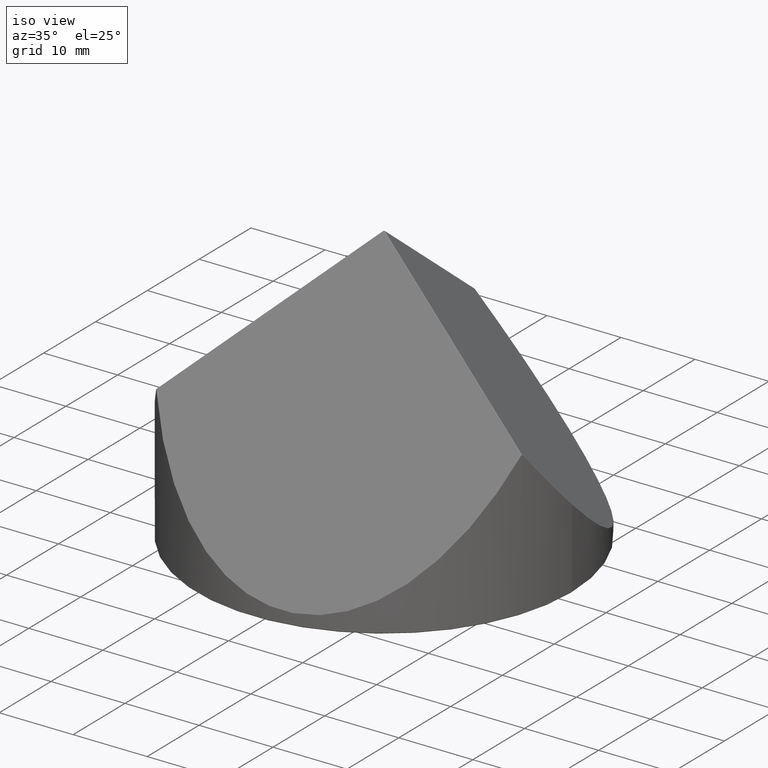
[diagram: clean part render]
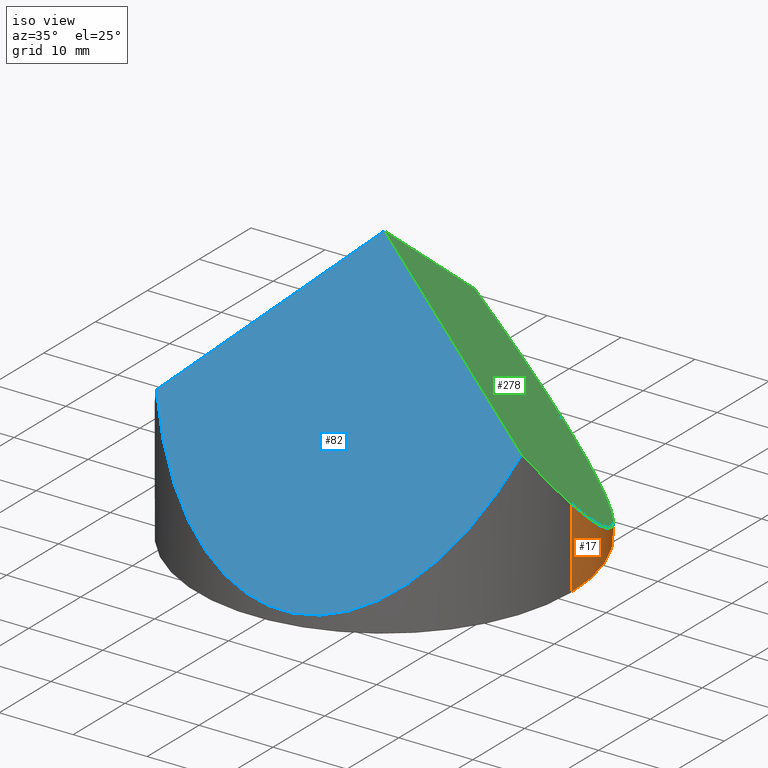
[diagram: same view with three faces highlighted in distinct colors, each labeled with its STEP entity id]
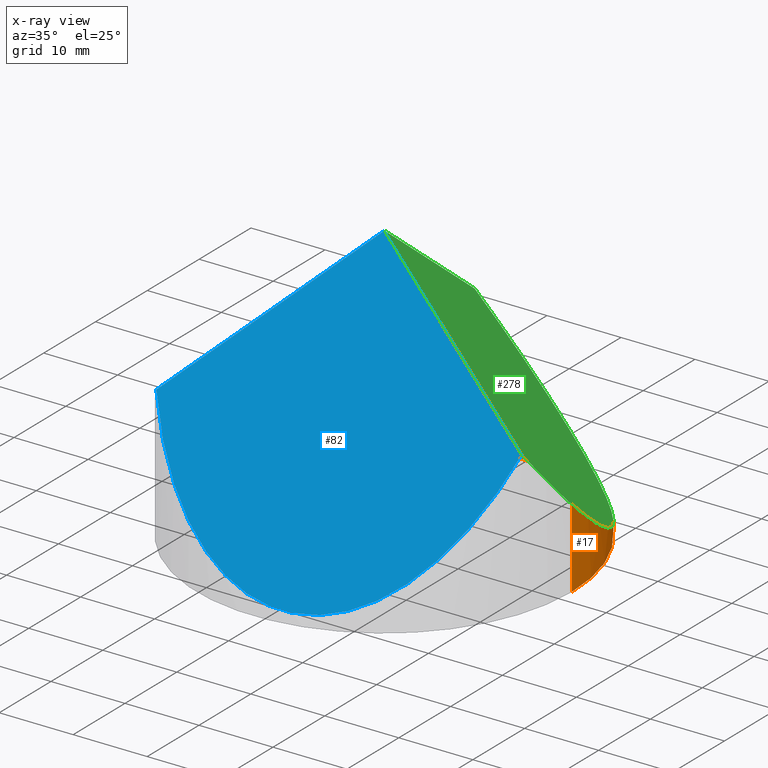
[diagram: x-ray of the same camera — body ghosted, the three highlighted faces saturated]
A machine part, iso view with three faces highlighted in distinct colors.
The next image is the same camera in x-ray (body ghosted, the three faces saturated) — at least one of them is partly hidden behind the body in this view.
Their STEP definitions:

[orange] entity #17 — the highlighted cylindrical surface (partial cylindrical patch) has radius 25.4 mm, axis along (-0, -0, -1).
#14 = CIRCLE ( 'NONE', #118, 25.39999999999999858 ) ;
#15 = VERTEX_POINT ( 'NONE', #128 ) ;
#17 = ADVANCED_FACE ( 'NONE', ( #232 ), #92, .T. ) ;
#25 = CARTESIAN_POINT ( 'NONE',  ( -5.168128125611016088, 24.86866405091493348, 18.91346705688051344 ) ) ;
#34 =( BOUNDED_CURVE ( )  B_SPLINE_CURVE ( 3, ( #290, #150, #262, #139 ),
 .UNSPECIFIED., .F., .F. ) 
 B_SPLINE_CURVE_WITH_KNOTS ( ( 4, 4 ),
 ( 5.551902276905597233, 7.327598969815007912 ),
 .UNSPECIFIED. ) 
 CURVE ( )  GEOMETRIC_REPRESENTATION_ITEM ( )  RATIONAL_B_SPLINE_CURVE ( ( 1.000000000000000000, 0.7540550383317463634, 0.7540550383317463634, 1.000000000000000000 ) ) 
 REPRESENTATION_ITEM ( '' )  );
#46 = CARTESIAN_POINT ( 'NONE',  ( 0.000000000000000000, 0.000000000000000000, -0.4400000000000237055 ) ) ;
#49 = EDGE_CURVE ( 'NONE', #286, #123, #287, .T. ) ;
#55 = VECTOR ( 'NONE', #336, 1000.000000000000000 ) ;
#57 = EDGE_CURVE ( 'NONE', #15, #155, #14, .T. ) ;
#64 = ORIENTED_EDGE ( 'NONE', *, *, #100, .T. ) ;
#70 = DIRECTION ( 'NONE',  ( -1.000000000000000000, 0.000000000000000000, 0.000000000000000000 ) ) ;
#78 = DIRECTION ( 'NONE',  ( 0.000000000000000000, 0.000000000000000000, 1.000000000000000000 ) ) ;
#92 = CYLINDRICAL_SURFACE ( 'NONE', #193, 25.39999999999999858 ) ;
#99 = VERTEX_POINT ( 'NONE', #137 ) ;
#100 = EDGE_CURVE ( 'NONE', #286, #99, #125, .T. ) ;
#102 = CARTESIAN_POINT ( 'NONE',  ( -5.306510482835705034, 24.83950374897926494, 18.91346705688070173 ) ) ;
#109 = CARTESIAN_POINT ( 'NONE',  ( -5.214282578149510350, 24.85907237667790426, 18.91337426047530101 ) ) ;
#118 = AXIS2_PLACEMENT_3D ( 'NONE', #46, #78, #189 ) ;
#123 = VERTEX_POINT ( 'NONE', #328 ) ;
#125 =( BOUNDED_CURVE ( )  B_SPLINE_CURVE ( 3, ( #361, #215, #109, #25 ),
 .UNSPECIFIED., .F., .T. ) 
 B_SPLINE_CURVE_WITH_KNOTS ( ( 4, 4 ),
 ( 6.280401418618402509, 6.285969195740753079 ),
 .UNSPECIFIED. ) 
 CURVE ( )  GEOMETRIC_REPRESENTATION_ITEM ( )  RATIONAL_B_SPLINE_CURVE ( ( 1.000000000000000000, 0.9999974166564946643, 0.9999974166564946643, 1.000000000000000000 ) ) 
 REPRESENTATION_ITEM ( '' )  );
#128 = CARTESIAN_POINT ( 'NONE',  ( 25.39999999999999858, 3.110602869834276865E-15, -0.4400000000000237055 ) ) ;
#130 = CARTESIAN_POINT ( 'NONE',  ( 25.39999999999999858, 3.110602869834276865E-15, 10.22384084278788308 ) ) ;
#137 = CARTESIAN_POINT ( 'NONE',  ( -5.168128125611016088, 24.86866405091493348, 18.91346705688051344 ) ) ;
#139 = CARTESIAN_POINT ( 'NONE',  ( -5.168128125611016088, 24.86866405091493348, 18.91346705688051344 ) ) ;
#150 = CARTESIAN_POINT ( 'NONE',  ( 25.39999999999999858, 17.41975240290805260, -6.228199174431550134 ) ) ;
#155 = VERTEX_POINT ( 'NONE', #331 ) ;
#164 = CARTESIAN_POINT ( 'NONE',  ( -25.39999999999999858, 0.000000000000000000, 2.817124151136544796 ) ) ;
#169 = EDGE_CURVE ( 'NONE', #355, #15, #245, .T. ) ;
#182 = ORIENTED_EDGE ( 'NONE', *, *, #241, .F. ) ;
#183 = EDGE_LOOP ( 'NONE', ( #345, #264, #289, #182, #323, #64 ) ) ;
#189 = DIRECTION ( 'NONE',  ( -1.000000000000000000, 0.000000000000000000, 0.000000000000000000 ) ) ;
#193 = AXIS2_PLACEMENT_3D ( 'NONE', #204, #322, #70 ) ;
#194 = CARTESIAN_POINT ( 'NONE',  ( 25.39999999999999858, 3.110602869834276865E-15, 19.00000000000000000 ) ) ;
#204 = CARTESIAN_POINT ( 'NONE',  ( 0.000000000000000000, 0.000000000000000000, 19.00000000000000000 ) ) ;
#215 = CARTESIAN_POINT ( 'NONE',  ( -5.260410149721108652, 24.84935225092225508, 18.91337426047529746 ) ) ;
#232 = FACE_OUTER_BOUND ( 'NONE', #183, .T. ) ;
#241 = EDGE_CURVE ( 'NONE', #123, #155, #277, .T. ) ;
#245 = LINE ( 'NONE', #194, #55 ) ;
#247 = CARTESIAN_POINT ( 'NONE',  ( -25.39999999999999858, 0.000000000000000000, 19.00000000000000000 ) ) ;
#262 = CARTESIAN_POINT ( 'NONE',  ( 11.88722503809127495, 28.41305430031056645, -2.386911835814395477 ) ) ;
#264 = ORIENTED_EDGE ( 'NONE', *, *, #169, .T. ) ;
#265 = VECTOR ( 'NONE', #364, 1000.000000000000000 ) ;
#277 = LINE ( 'NONE', #247, #265 ) ;
#286 = VERTEX_POINT ( 'NONE', #292 ) ;
#287 =( BOUNDED_CURVE ( )  B_SPLINE_CURVE ( 3, ( #102, #360, #300, #164 ),
 .UNSPECIFIED., .F., .T. ) 
 B_SPLINE_CURVE_WITH_KNOTS ( ( 4, 4 ),
 ( 5.238771644544158335, 6.599099828102190202 ),
 .UNSPECIFIED. ) 
 CURVE ( )  GEOMETRIC_REPRESENTATION_ITEM ( )  RATIONAL_B_SPLINE_CURVE ( ( 1.000000000000000000, 0.8516463523446279327, 0.8516463523446279327, 1.000000000000000000 ) ) 
 REPRESENTATION_ITEM ( '' )  );
#289 = ORIENTED_EDGE ( 'NONE', *, *, #57, .T. ) ;
#290 = CARTESIAN_POINT ( 'NONE',  ( 25.39999999999999858, 3.110602869834276865E-15, 10.22384084278788308 ) ) ;
#292 = CARTESIAN_POINT ( 'NONE',  ( -5.306510482835705034, 24.83950374897926494, 18.91346705688070173 ) ) ;
#300 = CARTESIAN_POINT ( 'NONE',  ( -25.39999999999999858, 12.50486458425474012, -2.677215275479166490 ) ) ;
#309 = EDGE_CURVE ( 'NONE', #355, #99, #34, .T. ) ;
#322 = DIRECTION ( 'NONE',  ( -0.000000000000000000, -0.000000000000000000, -1.000000000000000000 ) ) ;
#323 = ORIENTED_EDGE ( 'NONE', *, *, #49, .F. ) ;
#328 = CARTESIAN_POINT ( 'NONE',  ( -25.39999999999999858, 0.000000000000000000, 2.817124151136544796 ) ) ;
#331 = CARTESIAN_POINT ( 'NONE',  ( -25.39999999999999858, 0.000000000000000000, -0.4400000000000237055 ) ) ;
#336 = DIRECTION ( 'NONE',  ( -0.000000000000000000, -0.000000000000000000, -1.000000000000000000 ) ) ;
#345 = ORIENTED_EDGE ( 'NONE', *, *, #309, .F. ) ;
#355 = VERTEX_POINT ( 'NONE', #130 ) ;
#360 = CARTESIAN_POINT ( 'NONE',  ( -17.53543295216929820, 22.22701575674349783, 3.622873511934407986 ) ) ;
#361 = CARTESIAN_POINT ( 'NONE',  ( -5.306510482835705034, 24.83950374897926494, 18.91346705688070173 ) ) ;
#364 = DIRECTION ( 'NONE',  ( -0.000000000000000000, -0.000000000000000000, -1.000000000000000000 ) ) ;

[blue] entity #82 — the highlighted planar face has unit normal (0.1684, -0.799, 0.5774).
#26 = DIRECTION ( 'NONE',  ( 0.1683570817218961180, -0.7989509119468820586, 0.5773502691896249539 ) ) ;
#31 = LINE ( 'NONE', #340, #248 ) ;
#44 = ORIENTED_EDGE ( 'NONE', *, *, #311, .T. ) ;
#50 = VECTOR ( 'NONE', #87, 1000.000000000000114 ) ;
#62 = LINE ( 'NONE', #199, #50 ) ;
#82 = ADVANCED_FACE ( 'NONE', ( #359 ), #362, .T. ) ;
#86 = CARTESIAN_POINT ( 'NONE',  ( 0.01683570817220000904, -0.07989509119468762854, 36.84504218830038269 ) ) ;
#87 = DIRECTION ( 'NONE',  ( -0.7760903269836917362, 0.2536739462952649626, 0.5773502691896257311 ) ) ;
#94 = AXIS2_PLACEMENT_3D ( 'NONE', #219, #26, #330 ) ;
#95 =( BOUNDED_CURVE ( )  B_SPLINE_CURVE ( 3, ( #159, #274, #243, #240 ),
 .UNSPECIFIED., .F., .T. ) 
 B_SPLINE_CURVE_WITH_KNOTS ( ( 4, 4 ),
 ( 5.238771644544156558, 7.327598969815005248 ),
 .UNSPECIFIED. ) 
 CURVE ( )  GEOMETRIC_REPRESENTATION_ITEM ( )  RATIONAL_B_SPLINE_CURVE ( ( 1.000000000000000000, 0.6682726517290241697, 0.6682726517290241697, 1.000000000000000000 ) ) 
 REPRESENTATION_ITEM ( '' )  );
#107 = CARTESIAN_POINT ( 'NONE',  ( 24.12095888907871455, -7.958601778665308046, 18.91346705688044239 ) ) ;
#111 = EDGE_CURVE ( 'NONE', #263, #148, #95, .T. ) ;
#115 = CARTESIAN_POINT ( 'NONE',  ( -18.85838602259694241, -17.01532475807383804, 18.91346705688074437 ) ) ;
#148 = VERTEX_POINT ( 'NONE', #107 ) ;
#159 = CARTESIAN_POINT ( 'NONE',  ( -18.85838602259694241, -17.01532475807383804, 18.91346705688074437 ) ) ;
#179 = ORIENTED_EDGE ( 'NONE', *, *, #269, .T. ) ;
#199 = CARTESIAN_POINT ( 'NONE',  ( 16.50034365087477539, -5.467717053705210439, 24.58260646783990921 ) ) ;
#219 = CARTESIAN_POINT ( 'NONE',  ( 3.592598988921612779, -17.04894269431294873, 12.32017074737939843 ) ) ;
#233 = DIRECTION ( 'NONE',  ( -0.6077332452617962844, -0.5452769656516146535, -0.5773502691896257311 ) ) ;
#240 = CARTESIAN_POINT ( 'NONE',  ( 24.12095888907871455, -7.958601778665308046, 18.91346705688044239 ) ) ;
#243 = CARTESIAN_POINT ( 'NONE',  ( 17.25624912604057570, -28.76418881325986376, -7.876024622089468963 ) ) ;
#248 = VECTOR ( 'NONE', #233, 1000.000000000000000 ) ;
#256 = VERTEX_POINT ( 'NONE', #86 ) ;
#263 = VERTEX_POINT ( 'NONE', #115 ) ;
#269 = EDGE_CURVE ( 'NONE', #148, #256, #62, .T. ) ;
#274 = CARTESIAN_POINT ( 'NONE',  ( -4.181779598949180610, -33.28166779731227365, -7.876024622089304650 ) ) ;
#311 = EDGE_CURVE ( 'NONE', #256, #263, #31, .T. ) ;
#330 = DIRECTION ( 'NONE',  ( 0.000000000000000000, -0.5857106597838052098, -0.8105202175242882667 ) ) ;
#340 = CARTESIAN_POINT ( 'NONE',  ( -12.89090895378097024, -11.66112073180239683, 24.58260646783990566 ) ) ;
#342 = EDGE_LOOP ( 'NONE', ( #179, #44, #349 ) ) ;
#349 = ORIENTED_EDGE ( 'NONE', *, *, #111, .T. ) ;
#359 = FACE_OUTER_BOUND ( 'NONE', #342, .T. ) ;
#362 = PLANE ( 'NONE',  #94 ) ;

[green] entity #278 — the highlighted planar face has unit normal (0.6077, 0.5453, 0.5774).
#6 = EDGE_CURVE ( 'NONE', #99, #176, #202, .T. ) ;
#23 =( BOUNDED_CURVE ( )  B_SPLINE_CURVE ( 3, ( #138, #304, #52, #51 ),
 .UNSPECIFIED., .F., .T. ) 
 B_SPLINE_CURVE_WITH_KNOTS ( ( 4, 4 ),
 ( 5.238771644544163664, 5.551902276905597233 ),
 .UNSPECIFIED. ) 
 CURVE ( )  GEOMETRIC_REPRESENTATION_ITEM ( )  RATIONAL_B_SPLINE_CURVE ( ( 1.000000000000000000, 0.9918457778570393124, 0.9918457778570393124, 1.000000000000000000 ) ) 
 REPRESENTATION_ITEM ( '' )  );
#33 = DIRECTION ( 'NONE',  ( 0.6077332452617951741, 0.5452769656516149865, 0.5773502691896267303 ) ) ;
#34 =( BOUNDED_CURVE ( )  B_SPLINE_CURVE ( 3, ( #290, #150, #262, #139 ),
 .UNSPECIFIED., .F., .F. ) 
 B_SPLINE_CURVE_WITH_KNOTS ( ( 4, 4 ),
 ( 5.551902276905597233, 7.327598969815007912 ),
 .UNSPECIFIED. ) 
 CURVE ( )  GEOMETRIC_REPRESENTATION_ITEM ( )  RATIONAL_B_SPLINE_CURVE ( ( 1.000000000000000000, 0.7540550383317463634, 0.7540550383317463634, 1.000000000000000000 ) ) 
 REPRESENTATION_ITEM ( '' )  );
#40 = CARTESIAN_POINT ( 'NONE',  ( -3.514989956223204537, 17.02357529968344352, 24.58260646783990566 ) ) ;
#51 = CARTESIAN_POINT ( 'NONE',  ( 25.39999999999999858, 3.110602869834276865E-15, 10.22384084278788308 ) ) ;
#52 = CARTESIAN_POINT ( 'NONE',  ( 25.40000000000000924, -2.662061765035191208, 12.73801817858958607 ) ) ;
#54 = DIRECTION ( 'NONE',  ( 0.7760903269836917362, -0.2536739462952649626, -0.5773502691896257311 ) ) ;
#76 = CARTESIAN_POINT ( 'NONE',  ( 16.54428126722876868, -5.333294265945349721, 24.58260646783990566 ) ) ;
#99 = VERTEX_POINT ( 'NONE', #137 ) ;
#103 = LINE ( 'NONE', #76, #212 ) ;
#112 = VECTOR ( 'NONE', #260, 1000.000000000000000 ) ;
#120 = DIRECTION ( 'NONE',  ( 0.6887517733186873103, 0.000000000000000000, -0.7249972377536092472 ) ) ;
#122 = ORIENTED_EDGE ( 'NONE', *, *, #309, .T. ) ;
#127 = VERTEX_POINT ( 'NONE', #298 ) ;
#130 = CARTESIAN_POINT ( 'NONE',  ( 25.39999999999999858, 3.110602869834276865E-15, 10.22384084278788308 ) ) ;
#137 = CARTESIAN_POINT ( 'NONE',  ( -5.168128125611016088, 24.86866405091493348, 18.91346705688051344 ) ) ;
#138 = CARTESIAN_POINT ( 'NONE',  ( 24.16489650543270074, -7.824178990905487296, 18.91346705688055252 ) ) ;
#139 = CARTESIAN_POINT ( 'NONE',  ( -5.168128125611016088, 24.86866405091493348, 18.91346705688051344 ) ) ;
#140 = EDGE_CURVE ( 'NONE', #176, #127, #103, .T. ) ;
#143 = FACE_OUTER_BOUND ( 'NONE', #321, .T. ) ;
#150 = CARTESIAN_POINT ( 'NONE',  ( 25.39999999999999858, 17.41975240290805260, -6.228199174431550134 ) ) ;
#158 = ORIENTED_EDGE ( 'NONE', *, *, #140, .T. ) ;
#174 = EDGE_CURVE ( 'NONE', #127, #355, #23, .T. ) ;
#176 = VERTEX_POINT ( 'NONE', #244 ) ;
#198 = PLANE ( 'NONE',  #301 ) ;
#202 = LINE ( 'NONE', #40, #112 ) ;
#212 = VECTOR ( 'NONE', #54, 1000.000000000000114 ) ;
#226 = ORIENTED_EDGE ( 'NONE', *, *, #6, .T. ) ;
#229 = ORIENTED_EDGE ( 'NONE', *, *, #174, .T. ) ;
#244 = CARTESIAN_POINT ( 'NONE',  ( 0.06077332452619520209, 0.05452769656517421348, 36.84504218830036848 ) ) ;
#260 = DIRECTION ( 'NONE',  ( 0.1683570817218947302, -0.7989509119468816145, 0.5773502691896258421 ) ) ;
#262 = CARTESIAN_POINT ( 'NONE',  ( 11.88722503809127495, 28.41305430031056645, -2.386911835814395477 ) ) ;
#278 = ADVANCED_FACE ( 'NONE', ( #143 ), #198, .T. ) ;
#290 = CARTESIAN_POINT ( 'NONE',  ( 25.39999999999999858, 3.110602869834276865E-15, 10.22384084278788308 ) ) ;
#298 = CARTESIAN_POINT ( 'NONE',  ( 24.16489650543270074, -7.824178990905487296, 18.91346705688055252 ) ) ;
#301 = AXIS2_PLACEMENT_3D ( 'NONE', #317, #33, #120 ) ;
#304 = CARTESIAN_POINT ( 'NONE',  ( 24.98491413277447748, -5.291562965584819089, 15.65837347578350602 ) ) ;
#309 = EDGE_CURVE ( 'NONE', #355, #99, #34, .T. ) ;
#317 = CARTESIAN_POINT ( 'NONE',  ( 12.96851798647934828, 11.63575333717290050, 12.32017074737948015 ) ) ;
#321 = EDGE_LOOP ( 'NONE', ( #226, #158, #229, #122 ) ) ;
#355 = VERTEX_POINT ( 'NONE', #130 ) ;